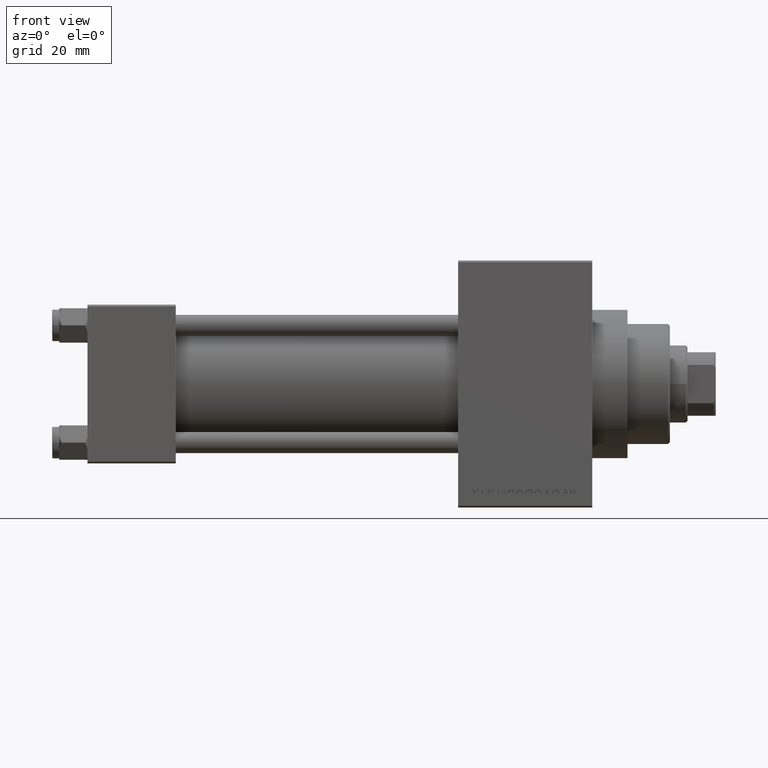
[diagram: clean part render]
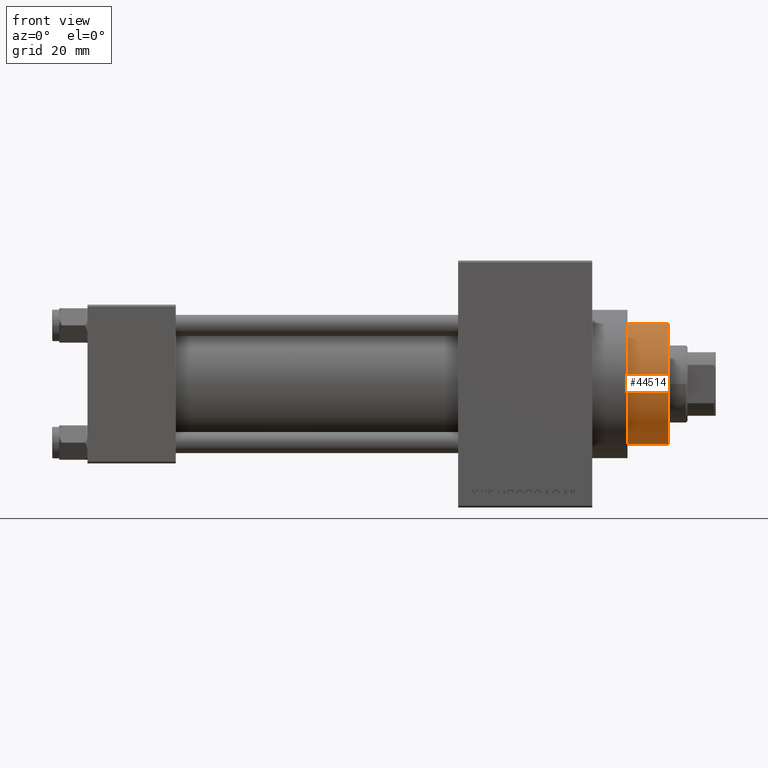
[diagram: same view with one face highlighted and labeled with its STEP entity id]
A machine part, front view. The second image highlights one B-rep face of the part: STEP entity #44514.
In plain terms, the highlighted cylindrical surface (partial cylindrical patch) has radius 17 mm, axis along (-1, 0, 0).
Its self-contained STEP definition (entity closure, byte-faithful):
#653 = EDGE_CURVE ( 'NONE', #15762, #13915, #32506, .T. ) ;
#1015 = AXIS2_PLACEMENT_3D ( 'NONE', #46161, #16076, #31228 ) ;
#1089 = CARTESIAN_POINT ( 'NONE',  ( 0.000000000000000000, 0.000000000000000000, 43.25999999999999801 ) ) ;
#2462 = DIRECTION ( 'NONE',  ( -0.000000000000000000, -0.000000000000000000, -1.000000000000000000 ) ) ;
#4834 = CARTESIAN_POINT ( 'NONE',  ( -17.00000000000000000, 0.000000000000000000, 54.76000000000001222 ) ) ;
#5417 = DIRECTION ( 'NONE',  ( -0.000000000000000000, -0.000000000000000000, -1.000000000000000000 ) ) ;
#9077 = ORIENTED_EDGE ( 'NONE', *, *, #46571, .T. ) ;
#10412 = CARTESIAN_POINT ( 'NONE',  ( 17.00000000000000000, 2.081899558550500280E-15, 55.26000000000000512 ) ) ;
#11391 = ORIENTED_EDGE ( 'NONE', *, *, #18792, .T. ) ;
#13915 = VERTEX_POINT ( 'NONE', #17350 ) ;
#15167 = CYLINDRICAL_SURFACE ( 'NONE', #22389, 17.00000000000000000 ) ;
#15762 = VERTEX_POINT ( 'NONE', #4834 ) ;
#16076 = DIRECTION ( 'NONE',  ( 0.000000000000000000, 0.000000000000000000, -1.000000000000000000 ) ) ;
#16875 = VECTOR ( 'NONE', #2462, 1000.000000000000000 ) ;
#17350 = CARTESIAN_POINT ( 'NONE',  ( -17.00000000000000000, 0.000000000000000000, 43.25999999999999801 ) ) ;
#18792 = EDGE_CURVE ( 'NONE', #38585, #13915, #32749, .T. ) ;
#21672 = CIRCLE ( 'NONE', #1015, 17.00000000000000000 ) ;
#21896 = DIRECTION ( 'NONE',  ( -1.000000000000000000, 0.000000000000000000, 0.000000000000000000 ) ) ;
#22389 = AXIS2_PLACEMENT_3D ( 'NONE', #26351, #38028, #21896 ) ;
#26351 = CARTESIAN_POINT ( 'NONE',  ( 0.000000000000000000, 0.000000000000000000, 55.26000000000000512 ) ) ;
#27201 = DIRECTION ( 'NONE',  ( 0.000000000000000000, 0.000000000000000000, 1.000000000000000000 ) ) ;
#31228 = DIRECTION ( 'NONE',  ( 1.000000000000000000, 0.000000000000000000, 0.000000000000000000 ) ) ;
#32325 = CARTESIAN_POINT ( 'NONE',  ( 17.00000000000000000, 2.081899558550500280E-15, 54.76000000000001222 ) ) ;
#32506 = LINE ( 'NONE', #47681, #36868 ) ;
#32749 = CIRCLE ( 'NONE', #39105, 17.00000000000000000 ) ;
#33808 = FACE_OUTER_BOUND ( 'NONE', #36338, .T. ) ;
#33816 = CARTESIAN_POINT ( 'NONE',  ( 17.00000000000000000, 2.081899558550500280E-15, 43.25999999999999801 ) ) ;
#36338 = EDGE_LOOP ( 'NONE', ( #9077, #46470, #11391, #39957 ) ) ;
#36868 = VECTOR ( 'NONE', #5417, 1000.000000000000000 ) ;
#38028 = DIRECTION ( 'NONE',  ( -0.000000000000000000, -0.000000000000000000, -1.000000000000000000 ) ) ;
#38585 = VERTEX_POINT ( 'NONE', #33816 ) ;
#39105 = AXIS2_PLACEMENT_3D ( 'NONE', #1089, #27201, #47259 ) ;
#39957 = ORIENTED_EDGE ( 'NONE', *, *, #653, .F. ) ;
#44225 = LINE ( 'NONE', #10412, #16875 ) ;
#44514 = ADVANCED_FACE ( 'NONE', ( #33808 ), #15167, .T. ) ;
#45371 = EDGE_CURVE ( 'NONE', #45965, #38585, #44225, .T. ) ;
#45965 = VERTEX_POINT ( 'NONE', #32325 ) ;
#46161 = CARTESIAN_POINT ( 'NONE',  ( 0.000000000000000000, 0.000000000000000000, 54.76000000000001222 ) ) ;
#46470 = ORIENTED_EDGE ( 'NONE', *, *, #45371, .T. ) ;
#46571 = EDGE_CURVE ( 'NONE', #15762, #45965, #21672, .T. ) ;
#47259 = DIRECTION ( 'NONE',  ( 1.000000000000000000, 0.000000000000000000, 0.000000000000000000 ) ) ;
#47681 = CARTESIAN_POINT ( 'NONE',  ( -17.00000000000000000, 0.000000000000000000, 55.26000000000000512 ) ) ;